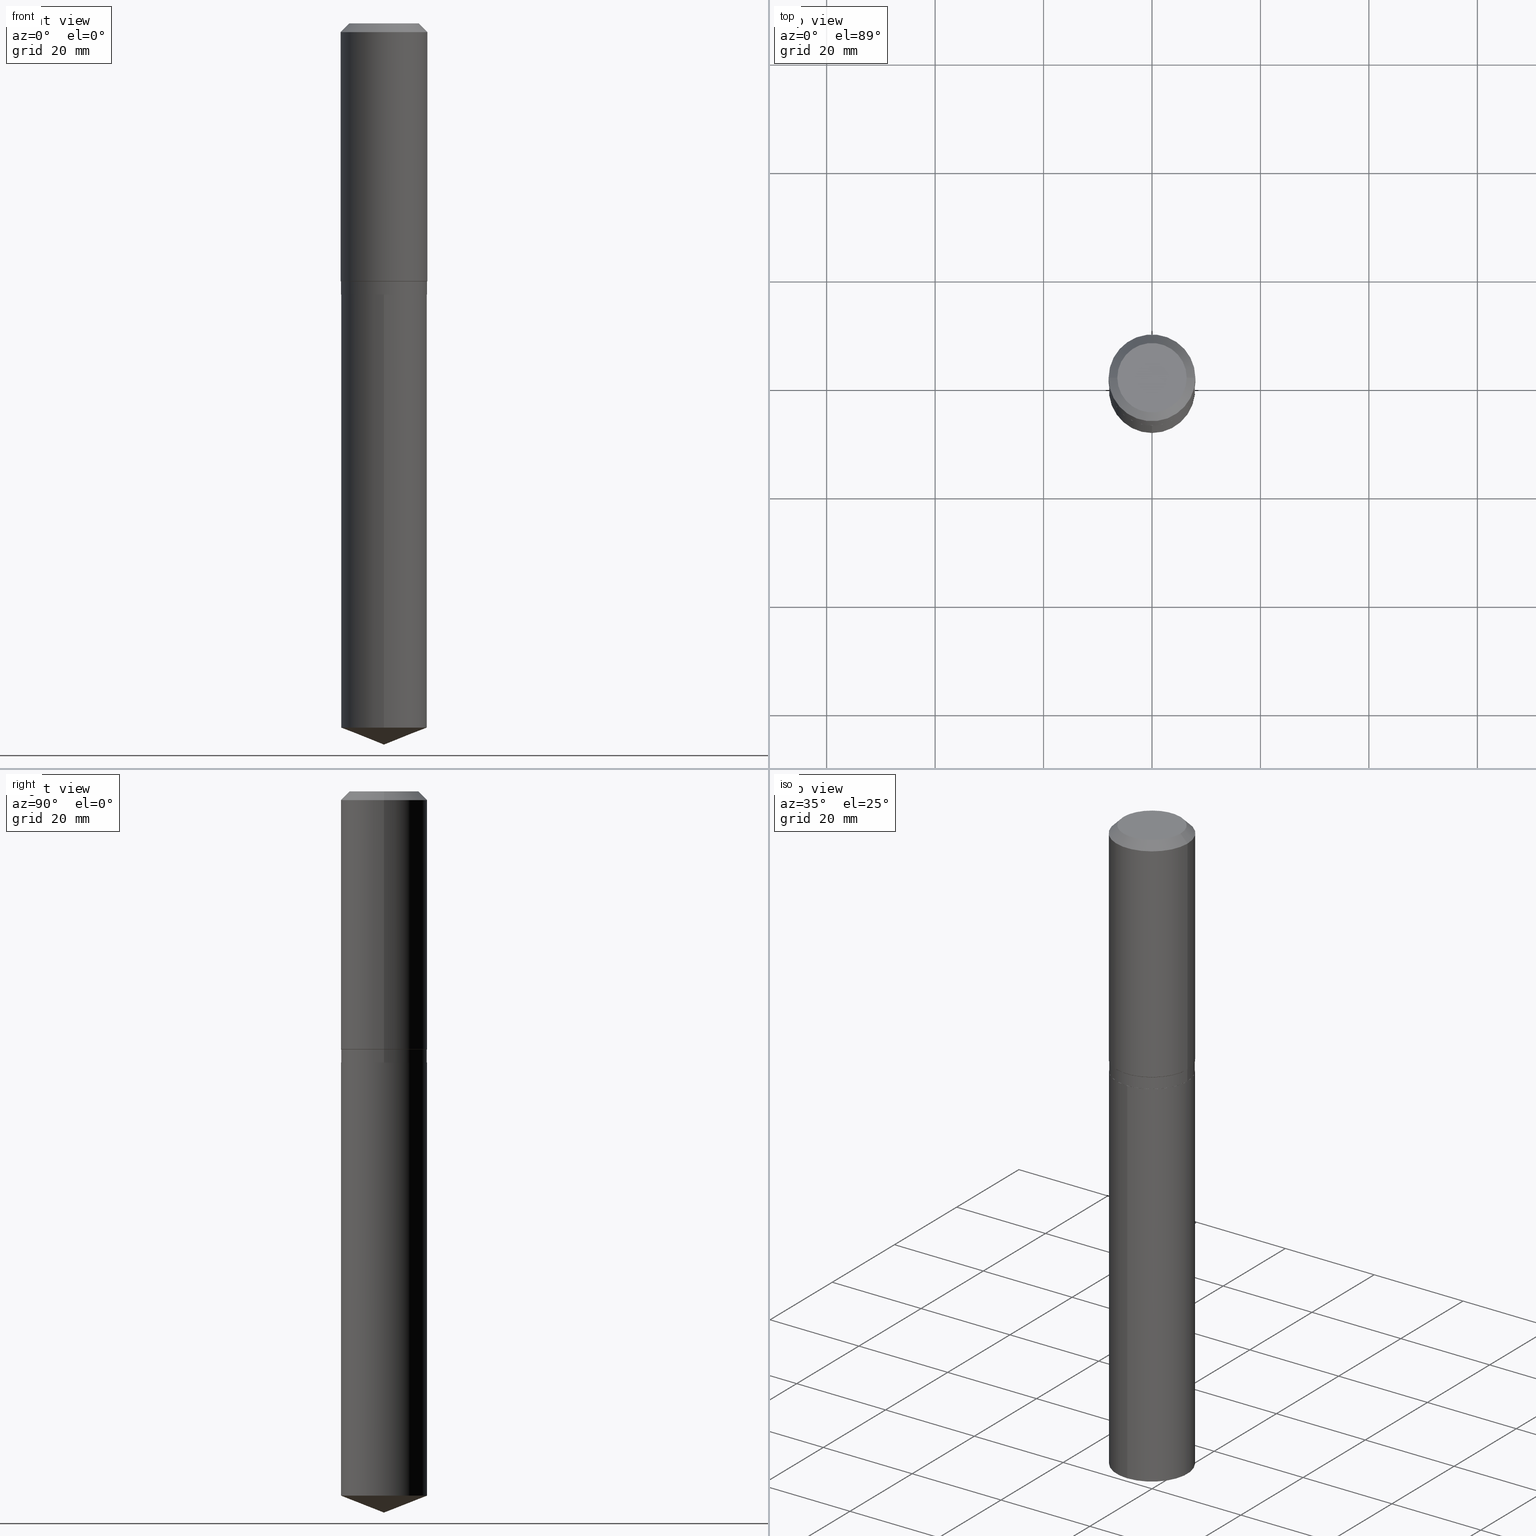
[diagram: canonical four-view strip — front | top / right | iso, engineering-drawing reading convention]
A machine part, canonical four-view strip (front | top / right | iso — engineering-drawing reading convention). The complete STEP part file that produces these views, byte-faithful:
ISO-10303-21;
HEADER;
FILE_DESCRIPTION (( 'STEP AP203' ),
    '1' );
FILE_NAME ('56468.STEP',
    '2024-04-24T18:11:30',
    ( '' ),
    ( '' ),
    'SwSTEP 2.0',
    'SolidWorks 2023',
    '' );
FILE_SCHEMA (( 'CONFIG_CONTROL_DESIGN' ));
ENDSEC;

DATA;
#1 = DIRECTION ( 'NONE',  ( 0.7071067811865573427, -2.468850131082359612E-15, 0.7071067811865376918 ) ) ;
#2 = CIRCLE ( 'NONE', #241, 0.3125000000000000000 ) ;
#3 = DIRECTION ( 'NONE',  ( -2.445468806185136597E-29, 3.491481338843145583E-15, 1.000000000000000000 ) ) ;
#4 = CARTESIAN_POINT ( 'NONE',  ( -0.3125000000000000000, 2.220446049250313081E-15, -1.537167215704658232E-29 ) ) ;
#5 = EDGE_CURVE ( 'NONE', #364, #442, #224, .T. ) ;
#6 = PERSON_AND_ORGANIZATION ( #473, #471 ) ;
#7 = DIRECTION ( 'NONE',  ( 1.000000000000000000, -6.982962677686264344E-15, 0.000000000000000000 ) ) ;
#8 = DATE_AND_TIME ( #430, #333 ) ;
#9 = CARTESIAN_POINT ( 'NONE',  ( 1.280454804874972997E-28, -1.828129120647004454E-14, -5.235999999999999766 ) ) ;
#10 = CONICAL_SURFACE ( 'NONE', #260, 99.94676754583900902, 1.195550537616116182 ) ;
#11 = APPROVAL_ROLE ( '' ) ;
#12 = ORIENTED_EDGE ( 'NONE', *, *, #374, .F. ) ;
#13 = PERSON_AND_ORGANIZATION_ROLE ( 'classification_officer' ) ;
#14 = VERTEX_POINT ( 'NONE', #248 ) ;
#15 = CALENDAR_DATE ( 2024, 24, 4 ) ;
#16 = ORIENTED_EDGE ( 'NONE', *, *, #187, .T. ) ;
#17 = CARTESIAN_POINT ( 'NONE',  ( 4.583297636552181403E-29, -6.543734325259821146E-15, -1.874199999999999422 ) ) ;
#18 = EDGE_LOOP ( 'NONE', ( #486, #170 ) ) ;
#19 = EDGE_CURVE ( 'NONE', #251, #90, #202, .T. ) ;
#20 = CYLINDRICAL_SURFACE ( 'NONE', #101, 0.3125000000000000000 ) ;
#21 = ADVANCED_FACE ( 'NONE', ( #28 ), #20, .T. ) ;
#22 = DIRECTION ( 'NONE',  ( 1.000000000000000000, -6.982962677686265133E-15, 0.000000000000000000 ) ) ;
#23 = VERTEX_POINT ( 'NONE', #405 ) ;
#24 = VERTEX_POINT ( 'NONE', #331 ) ;
#25 = DIRECTION ( 'NONE',  ( -6.982962677686265133E-15, -1.000000000000000000, 3.496765431890256920E-15 ) ) ;
#26 = EDGE_LOOP ( 'NONE', ( #480, #94, #172, #476 ) ) ;
#27 = APPLICATION_CONTEXT ( 'configuration controlled 3d designs of mechanical parts and assemblies' ) ;
#28 = FACE_OUTER_BOUND ( 'NONE', #134, .T. ) ;
#29 = DIRECTION ( 'NONE',  ( 6.982962677686265922E-15, 1.000000000000000000, -3.491461269379306004E-15 ) ) ;
#30 = CIRCLE ( 'NONE', #221, 0.3149500000000000077 ) ;
#31 = DIRECTION ( 'NONE',  ( -6.982962677686265133E-15, -1.000000000000000000, 3.496765431890256920E-15 ) ) ;
#32 = VECTOR ( 'NONE', #389, 39.37007874015748854 ) ;
#33 = CIRCLE ( 'NONE', #164, 0.2519600000000000173 ) ;
#34 = ADVANCED_FACE ( 'NONE', ( #219 ), #10, .T. ) ;
#35 = CIRCLE ( 'NONE', #417, 0.2519600000000000173 ) ;
#36 = CARTESIAN_POINT ( 'NONE',  ( 4.583297636552181403E-29, -6.543734325259821146E-15, -1.874199999999999422 ) ) ;
#37 = DIRECTION ( 'NONE',  ( -6.982962677686265133E-15, -1.000000000000000000, 3.496765431890256920E-15 ) ) ;
#38 = DIRECTION ( 'NONE',  ( -2.445468806185136877E-29, 3.491481338843145188E-15, 1.000000000000000000 ) ) ;
#39 = PRODUCT_RELATED_PRODUCT_CATEGORY ( 'detail', '', ( #279 ) ) ;
#40 = CLOSED_SHELL ( 'NONE', ( #459, #309, #95, #195, #422, #388, #223, #324, #270, #231, #441, #124 ) ) ;
#41 = EDGE_CURVE ( 'NONE', #14, #23, #110, .T. ) ;
#42 = CARTESIAN_POINT ( 'NONE',  ( 4.813416251214202584E-29, -6.872282719244960739E-15, -1.968299999999999272 ) ) ;
#43 = AXIS2_PLACEMENT_3D ( 'NONE', #346, #3, #126 ) ;
#44 = DIRECTION ( 'NONE',  ( 1.000000000000000000, -6.982962677686265133E-15, 0.000000000000000000 ) ) ;
#45 = APPLICATION_PROTOCOL_DEFINITION ( 'international standard', 'config_control_design', 1994, #64 ) ;
#46 = DIRECTION ( 'NONE',  ( -2.445468806185136597E-29, 3.491481338843145583E-15, 1.000000000000000000 ) ) ;
#47 = ORIENTED_EDGE ( 'NONE', *, *, #367, .F. ) ;
#48 = LOCAL_TIME ( 14, 11, 30.00000000000000000, #421 ) ;
#49 =( LENGTH_UNIT ( ) NAMED_UNIT ( * ) SI_UNIT ( $, .METRE. ) );
#50 = CIRCLE ( 'NONE', #391, 0.3125000000000000000 ) ;
#51 = PERSON_AND_ORGANIZATION ( #473, #471 ) ;
#52 = ORIENTED_EDGE ( 'NONE', *, *, #284, .F. ) ;
#53 = DIRECTION ( 'NONE',  ( 1.000000000000000000, -6.982962677686264344E-15, 0.000000000000000000 ) ) ;
#54 = VECTOR ( 'NONE', #289, 39.37007874015748143 ) ;
#55 = VERTEX_POINT ( 'NONE', #323 ) ;
#56 = DIRECTION ( 'NONE',  ( -2.445468806185136597E-29, 3.491481338843145583E-15, 1.000000000000000000 ) ) ;
#57 = CARTESIAN_POINT ( 'NONE',  ( 0.3149500000000000077, -2.380642253931875190E-15, -0.06299000000000036514 ) ) ;
#58 = CARTESIAN_POINT ( 'NONE',  ( -8.347433074124325002E-28, 1.191777743844777416E-13, 34.13407874015748433 ) ) ;
#59 = EDGE_LOOP ( 'NONE', ( #328, #246, #288, #63 ) ) ;
#60 = EDGE_CURVE ( 'NONE', #403, #73, #292, .T. ) ;
#61 = PRODUCT_DEFINITION_FORMATION_WITH_SPECIFIED_SOURCE ( 'ANY', '', #279, .NOT_KNOWN. ) ;
#62 = CARTESIAN_POINT ( 'NONE',  ( -0.2519600000000000173, 1.869391481036695286E-15, 3.855188123703174230E-18 ) ) ;
#63 = ORIENTED_EDGE ( 'NONE', *, *, #41, .F. ) ;
#64 = APPLICATION_CONTEXT ( 'configuration controlled 3d designs of mechanical parts and assemblies' ) ;
#65 = AXIS2_PLACEMENT_3D ( 'NONE', #440, #325, #447 ) ;
#66 = DIRECTION ( 'NONE',  ( 1.000000000000000000, -6.982962677686266711E-15, 4.876115136096691995E-29 ) ) ;
#67 = CC_DESIGN_PERSON_AND_ORGANIZATION_ASSIGNMENT ( #276, #399, ( #269 ) ) ;
#68 = CARTESIAN_POINT ( 'NONE',  ( 1.540400801016026329E-30, -2.199284095337310135E-16, -0.06299000000000036514 ) ) ;
#69 = CARTESIAN_POINT ( 'NONE',  ( 4.813416251214202584E-29, -6.872282719244960739E-15, -1.968299999999999272 ) ) ;
#70 = LOCAL_TIME ( 14, 11, 30.00000000000000000, #127 ) ;
#71 = DIRECTION ( 'NONE',  ( -2.445468806185136597E-29, 3.491481338843145583E-15, 1.000000000000000000 ) ) ;
#72 = VECTOR ( 'NONE', #185, 39.37007874015748854 ) ;
#73 = VERTEX_POINT ( 'NONE', #106 ) ;
#74 = EDGE_CURVE ( 'NONE', #24, #251, #148, .T. ) ;
#75 = DIRECTION ( 'NONE',  ( -2.445468806185136877E-29, 3.491481338843145188E-15, 1.000000000000000000 ) ) ;
#76 = VECTOR ( 'NONE', #38, 39.37007874015748143 ) ;
#77 = CARTESIAN_POINT ( 'NONE',  ( -0.3120000000000001106, -4.652740156499336567E-15, -1.968299999999999272 ) ) ;
#78 = EDGE_CURVE ( 'NONE', #23, #14, #305, .T. ) ;
#79 = CARTESIAN_POINT ( 'NONE',  ( -0.3149500000000000077, -1.139699956480256043E-15, -0.06299000000000036514 ) ) ;
#80 = LINE ( 'NONE', #455, #76 ) ;
#81 = CARTESIAN_POINT ( 'NONE',  ( 0.000000000000000000, 0.000000000000000000, 0.000000000000000000 ) ) ;
#82 = APPROVAL_STATUS ( 'not_yet_approved' ) ;
#83 = LINE ( 'NONE', #418, #92 ) ;
#84 = VERTEX_POINT ( 'NONE', #115 ) ;
#85 = ADVANCED_FACE ( 'NONE', ( #381 ), #227, .T. ) ;
#86 = APPROVAL_ROLE ( '' ) ;
#87 = EDGE_LOOP ( 'NONE', ( #237, #215, #100, #362 ) ) ;
#88 = CARTESIAN_POINT ( 'NONE',  ( 4.813416251214202584E-29, -6.872282719244960739E-15, -1.968299999999999272 ) ) ;
#89 = AXIS2_PLACEMENT_3D ( 'NONE', #69, #222, #29 ) ;
#90 = VERTEX_POINT ( 'NONE', #79 ) ;
#91 = CARTESIAN_POINT ( 'NONE',  ( 2.220446049250360807E-15, 0.3124999999999931166, -1.968300000000000383 ) ) ;
#92 = VECTOR ( 'NONE', #193, 39.37007874015748143 ) ;
#93 = COORDINATED_UNIVERSAL_TIME_OFFSET ( 5, 0, .BEHIND. ) ;
#94 = ORIENTED_EDGE ( 'NONE', *, *, #287, .T. ) ;
#95 = ADVANCED_FACE ( 'NONE', ( #377 ), #150, .T. ) ;
#96 = EDGE_LOOP ( 'NONE', ( #178, #437, #212, #12 ) ) ;
#97 = DIRECTION ( 'NONE',  ( 0.7071067811865453523, -7.319954787623248157E-15, -0.7071067811865496822 ) ) ;
#98 = DIRECTION ( 'NONE',  ( 1.000000000000000000, -6.982962677686266711E-15, 4.876115136096691995E-29 ) ) ;
#99 = VERTEX_POINT ( 'NONE', #336 ) ;
#100 = ORIENTED_EDGE ( 'NONE', *, *, #161, .F. ) ;
#101 = AXIS2_PLACEMENT_3D ( 'NONE', #253, #173, #182 ) ;
#102 = CARTESIAN_POINT ( 'NONE',  ( 4.583297636552181403E-29, -6.543734325259821146E-15, -1.874199999999999422 ) ) ;
#103 = DIRECTION ( 'NONE',  ( -2.445468806185136597E-29, 3.491481338843145583E-15, 1.000000000000000000 ) ) ;
#104 = ORIENTED_EDGE ( 'NONE', *, *, #262, .T. ) ;
#105 = AXIS2_PLACEMENT_3D ( 'NONE', #36, #123, #44 ) ;
#106 = CARTESIAN_POINT ( 'NONE',  ( 2.220446049250438510E-15, 0.3124999999999822364, -5.112902976370331309 ) ) ;
#107 = DIRECTION ( 'NONE',  ( -1.000000000000000000, 6.982962677686266711E-15, 0.000000000000000000 ) ) ;
#108 = ORIENTED_EDGE ( 'NONE', *, *, #133, .T. ) ;
#109 = CARTESIAN_POINT ( 'NONE',  ( 0.3120000000000001106, -9.050967074683076868E-15, -1.968299999999999272 ) ) ;
#110 = CIRCLE ( 'NONE', #122, 0.3125000000000000000 ) ;
#111 = CONICAL_SURFACE ( 'NONE', #267, 0.3120000000000001106, 0.7853981633974482790 ) ;
#112 = EDGE_CURVE ( 'NONE', #442, #364, #2, .T. ) ;
#113 = ADVANCED_FACE ( 'NONE', ( #329 ), #485, .T. ) ;
#114 = DIRECTION ( 'NONE',  ( -2.445468806185136597E-29, 3.491481338843145583E-15, 1.000000000000000000 ) ) ;
#115 = CARTESIAN_POINT ( 'NONE',  ( -0.3149500000000002298, -4.297325849703217821E-15, -1.871749999999999137 ) ) ;
#116 = APPROVAL ( #82, 'UNSPECIFIED' ) ;
#117 = PLANE ( 'NONE',  #168 ) ;
#118 = VECTOR ( 'NONE', #416, 39.37007874015748143 ) ;
#119 = DIRECTION ( 'NONE',  ( 1.000000000000000000, -6.982962677686265922E-15, 4.876176775795935793E-29 ) ) ;
#120 = ADVANCED_FACE ( 'NONE', ( #180 ), #370, .F. ) ;
#121 = DIRECTION ( 'NONE',  ( -6.497071151882111159E-15, -0.9304175679820234635, 0.3665012267243001332 ) ) ;
#122 = AXIS2_PLACEMENT_3D ( 'NONE', #144, #245, #293 ) ;
#123 = DIRECTION ( 'NONE',  ( -2.445468806185136597E-29, 3.491481338843145583E-15, 1.000000000000000000 ) ) ;
#124 = ADVANCED_FACE ( 'NONE', ( #174 ), #402, .T. ) ;
#125 = CIRCLE ( 'NONE', #65, 0.3149500000000002298 ) ;
#126 = DIRECTION ( 'NONE',  ( 1.000000000000000000, -6.982962677686266711E-15, 4.876176775795936353E-29 ) ) ;
#127 = COORDINATED_UNIVERSAL_TIME_OFFSET ( 5, 0, .BEHIND. ) ;
#128 = CARTESIAN_POINT ( 'NONE',  ( 0.000000000000000000, 0.000000000000000000, 0.000000000000000000 ) ) ;
#129 = APPROVAL_DATE_TIME ( #466, #468 ) ;
#130 = EDGE_LOOP ( 'NONE', ( #286, #208, #283, #438 ) ) ;
#131 = FACE_OUTER_BOUND ( 'NONE', #404, .T. ) ;
#132 = APPROVAL ( #432, 'UNSPECIFIED' ) ;
#133 = EDGE_CURVE ( 'NONE', #181, #24, #33, .T. ) ;
#134 = EDGE_LOOP ( 'NONE', ( #470, #104, #167, #205 ) ) ;
#135 = EDGE_LOOP ( 'NONE', ( #366, #146, #247, #16 ) ) ;
#136 = ORIENTED_EDGE ( 'NONE', *, *, #450, .F. ) ;
#137 = CARTESIAN_POINT ( 'NONE',  ( 0.3125000000000000000, -8.725910162036779493E-15, -1.874199999999999422 ) ) ;
#138 = DIRECTION ( 'NONE',  ( -2.445482820616831825E-29, 3.491461269379306004E-15, 1.000000000000000000 ) ) ;
#139 = DIRECTION ( 'NONE',  ( 1.000000000000000000, -6.982962677686268288E-15, 0.000000000000000000 ) ) ;
#140 = ORIENTED_EDGE ( 'NONE', *, *, #341, .F. ) ;
#141 = ORIENTED_EDGE ( 'NONE', *, *, #60, .F. ) ;
#142 = CC_DESIGN_APPROVAL ( #468, ( #269 ) ) ;
#143 = AXIS2_PLACEMENT_3D ( 'NONE', #68, #439, #474 ) ;
#144 = CARTESIAN_POINT ( 'NONE',  ( 4.812193516811110904E-29, -6.870536978575539236E-15, -1.967799999999999327 ) ) ;
#145 = CARTESIAN_POINT ( 'NONE',  ( 1.250348880758840458E-28, -1.785154221881686105E-14, -5.112902976370330421 ) ) ;
#146 = ORIENTED_EDGE ( 'NONE', *, *, #133, .F. ) ;
#147 = AXIS2_PLACEMENT_3D ( 'NONE', #344, #46, #7 ) ;
#148 = LINE ( 'NONE', #57, #372 ) ;
#149 = PLANE ( 'NONE',  #297 ) ;
#150 = CYLINDRICAL_SURFACE ( 'NONE', #376, 0.3149500000000001743 ) ;
#151 = ORIENTED_EDGE ( 'NONE', *, *, #187, .F. ) ;
#152 = FACE_OUTER_BOUND ( 'NONE', #408, .T. ) ;
#153 = EDGE_CURVE ( 'NONE', #84, #99, #265, .T. ) ;
#154 = AXIS2_PLACEMENT_3D ( 'NONE', #220, #298, #107 ) ;
#155 = DIRECTION ( 'NONE',  ( 1.000000000000000000, -6.982962677686266711E-15, 4.876176775795936353E-29 ) ) ;
#156 = DIRECTION ( 'NONE',  ( -2.445468806185136597E-29, 3.491481338843145583E-15, 1.000000000000000000 ) ) ;
#157 = CYLINDRICAL_SURFACE ( 'NONE', #43, 0.3125000000000000000 ) ;
#158 = LINE ( 'NONE', #266, #352 ) ;
#159 = COORDINATED_UNIVERSAL_TIME_OFFSET ( 5, 0, .BEHIND. ) ;
#160 = LINE ( 'NONE', #235, #118 ) ;
#161 = EDGE_CURVE ( 'NONE', #177, #55, #50, .T. ) ;
#162 = SHAPE_DEFINITION_REPRESENTATION ( #383, #210 ) ;
#163 = DIMENSIONAL_EXPONENTS ( 1.000000000000000000, 0.000000000000000000, 0.000000000000000000, 0.000000000000000000, 0.000000000000000000, 0.000000000000000000, 0.000000000000000000 ) ;
#164 = AXIS2_PLACEMENT_3D ( 'NONE', #214, #71, #66 ) ;
#165 = FACE_OUTER_BOUND ( 'NONE', #390, .T. ) ;
#166 = DATE_TIME_ROLE ( 'creation_date' ) ;
#167 = ORIENTED_EDGE ( 'NONE', *, *, #197, .T. ) ;
#168 = AXIS2_PLACEMENT_3D ( 'NONE', #311, #457, #119 ) ;
#169 = DATE_TIME_ROLE ( 'classification_date' ) ;
#170 = ORIENTED_EDGE ( 'NONE', *, *, #112, .T. ) ;
#171 = APPLICATION_PROTOCOL_DEFINITION ( 'international standard', 'config_control_design', 1994, #27 ) ;
#172 = ORIENTED_EDGE ( 'NONE', *, *, #216, .F. ) ;
#173 = DIRECTION ( 'NONE',  ( -2.445482820616831825E-29, 3.491461269379306004E-15, 1.000000000000000000 ) ) ;
#174 = FACE_OUTER_BOUND ( 'NONE', #59, .T. ) ;
#175 = ORIENTED_EDGE ( 'NONE', *, *, #153, .T. ) ;
#176 = DIRECTION ( 'NONE',  ( -2.445482820616831825E-29, 3.491461269379306004E-15, 1.000000000000000000 ) ) ;
#177 = VERTEX_POINT ( 'NONE', #137 ) ;
#178 = ORIENTED_EDGE ( 'NONE', *, *, #216, .T. ) ;
#179 = EDGE_CURVE ( 'NONE', #358, #14, #373, .T. ) ;
#180 = FACE_OUTER_BOUND ( 'NONE', #18, .T. ) ;
#181 = VERTEX_POINT ( 'NONE', #62 ) ;
#182 = DIRECTION ( 'NONE',  ( -6.982962677686265133E-15, -1.000000000000000000, 3.496765431890256920E-15 ) ) ;
#183 = DIRECTION ( 'NONE',  ( -2.445468806185136597E-29, 3.491481338843145583E-15, 1.000000000000000000 ) ) ;
#184 = ORIENTED_EDGE ( 'NONE', *, *, #478, .T. ) ;
#185 = DIRECTION ( 'NONE',  ( -0.7071067811865474617, 7.493145998870352582E-15, 0.7071067811865474617 ) ) ;
#186 = CC_DESIGN_PERSON_AND_ORGANIZATION_ASSIGNMENT ( #51, #387, ( #279 ) ) ;
#187 = EDGE_CURVE ( 'NONE', #90, #251, #30, .T. ) ;
#188 = CONICAL_SURFACE ( 'NONE', #154, 0.3149500000000000077, 0.7853981633974452814 ) ;
#189 = DIRECTION ( 'NONE',  ( -2.445468806185136877E-29, 3.491481338843145188E-15, 1.000000000000000000 ) ) ;
#190 = CARTESIAN_POINT ( 'NONE',  ( 4.813416251214202584E-29, -6.872282719244960739E-15, -1.968299999999999272 ) ) ;
#191 = LINE ( 'NONE', #4, #456 ) ;
#192 = CLOSED_SHELL ( 'NONE', ( #85, #113, #34, #21, #120 ) ) ;
#193 = DIRECTION ( 'NONE',  ( -0.7071067811865453523, 2.468850131082234184E-15, -0.7071067811865496822 ) ) ;
#194 = APPROVAL_DATE_TIME ( #392, #132 ) ;
#195 = ADVANCED_FACE ( 'NONE', ( #406 ), #342, .T. ) ;
#196 = CYLINDRICAL_SURFACE ( 'NONE', #425, 0.3149500000000001743 ) ;
#197 = EDGE_CURVE ( 'NONE', #403, #364, #254, .T. ) ;
#198 = APPROVAL_STATUS ( 'not_yet_approved' ) ;
#199 = CARTESIAN_POINT ( 'NONE',  ( 0.3120000000000001106, -9.050967074683076868E-15, -1.968299999999999272 ) ) ;
#200 = PERSON_AND_ORGANIZATION_ROLE ( 'design_supplier' ) ;
#201 = EDGE_LOOP ( 'NONE', ( #217, #184, #354, #330 ) ) ;
#202 = CIRCLE ( 'NONE', #143, 0.3149500000000000077 ) ;
#203 = CC_DESIGN_DATE_AND_TIME_ASSIGNMENT ( #353, #169, ( #230 ) ) ;
#204 = PERSON_AND_ORGANIZATION ( #473, #471 ) ;
#205 = ORIENTED_EDGE ( 'NONE', *, *, #112, .F. ) ;
#206 = VECTOR ( 'NONE', #75, 39.37007874015748143 ) ;
#207 = COORDINATED_UNIVERSAL_TIME_OFFSET ( 5, 0, .BEHIND. ) ;
#208 = ORIENTED_EDGE ( 'NONE', *, *, #367, .T. ) ;
#209 = DIRECTION ( 'NONE',  ( -2.445482820616831825E-29, 3.491461269379306004E-15, 1.000000000000000000 ) ) ;
#210 = ADVANCED_BREP_SHAPE_REPRESENTATION ( '56468', ( #303, #477, #240 ), #365 ) ;
#211 = DIRECTION ( 'NONE',  ( 1.000000000000000000, -6.982962677686265133E-15, 0.000000000000000000 ) ) ;
#212 = ORIENTED_EDGE ( 'NONE', *, *, #19, .F. ) ;
#213 = CARTESIAN_POINT ( 'NONE',  ( 4.812193516811110904E-29, -6.870536978575539236E-15, -1.967799999999999327 ) ) ;
#214 = CARTESIAN_POINT ( 'NONE',  ( -9.427742298522548188E-47, 1.346031739168365618E-32, 3.855188123715863027E-18 ) ) ;
#215 = ORIENTED_EDGE ( 'NONE', *, *, #341, .T. ) ;
#216 = EDGE_CURVE ( 'NONE', #99, #84, #125, .T. ) ;
#217 = ORIENTED_EDGE ( 'NONE', *, *, #60, .T. ) ;
#218 = CARTESIAN_POINT ( 'NONE',  ( 1.540400801016026329E-30, -2.199284095337310135E-16, -0.06299000000000036514 ) ) ;
#219 = FACE_OUTER_BOUND ( 'NONE', #316, .T. ) ;
#220 = CARTESIAN_POINT ( 'NONE',  ( 1.540400801016026329E-30, -2.199284095337310135E-16, -0.06299000000000036514 ) ) ;
#221 = AXIS2_PLACEMENT_3D ( 'NONE', #218, #361, #285 ) ;
#222 = DIRECTION ( 'NONE',  ( 2.445482820616831545E-29, -3.491461269379306004E-15, -1.000000000000000000 ) ) ;
#223 = ADVANCED_FACE ( 'NONE', ( #475 ), #339, .T. ) ;
#224 = CIRCLE ( 'NONE', #345, 0.3125000000000000000 ) ;
#225 = CYLINDRICAL_SURFACE ( 'NONE', #275, 0.3125000000000000000 ) ;
#226 = VECTOR ( 'NONE', #238, 39.37007874015748143 ) ;
#227 = CYLINDRICAL_SURFACE ( 'NONE', #335, 0.3125000000000000000 ) ;
#228 = CARTESIAN_POINT ( 'NONE',  ( 0.000000000000000000, 0.000000000000000000, 0.000000000000000000 ) ) ;
#229 = LINE ( 'NONE', #199, #32 ) ;
#230 = SECURITY_CLASSIFICATION ( '', '', #357 ) ;
#231 = ADVANCED_FACE ( 'NONE', ( #152 ), #149, .F. ) ;
#232 = CARTESIAN_POINT ( 'NONE',  ( -2.182175836776833707E-15, -0.3125000000000178191, -5.112902976370329533 ) ) ;
#233 = CIRCLE ( 'NONE', #105, 0.3125000000000000000 ) ;
#234 = DIRECTION ( 'NONE',  ( 1.000000000000000000, 0.000000000000000000, 0.000000000000000000 ) ) ;
#235 = CARTESIAN_POINT ( 'NONE',  ( 0.3149500000000001743, -2.199284095337290660E-15, 1.535751875536930690E-29 ) ) ;
#236 = CALENDAR_DATE ( 2024, 24, 4 ) ;
#237 = ORIENTED_EDGE ( 'NONE', *, *, #78, .T. ) ;
#238 = DIRECTION ( 'NONE',  ( 6.611014441532059489E-15, 0.9304175679820259059, 0.3665012267242935828 ) ) ;
#239 = CALENDAR_DATE ( 2024, 24, 4 ) ;
#240 = AXIS2_PLACEMENT_3D ( 'NONE', #128, #244, #234 ) ;
#241 = AXIS2_PLACEMENT_3D ( 'NONE', #410, #263, #31 ) ;
#242 = MECHANICAL_CONTEXT ( 'NONE', #27, 'mechanical' ) ;
#243 = ORIENTED_EDGE ( 'NONE', *, *, #179, .T. ) ;
#244 = DIRECTION ( 'NONE',  ( 0.000000000000000000, 0.000000000000000000, 1.000000000000000000 ) ) ;
#245 = DIRECTION ( 'NONE',  ( -2.445468806185136597E-29, 3.491481338843145583E-15, 1.000000000000000000 ) ) ;
#246 = ORIENTED_EDGE ( 'NONE', *, *, #450, .T. ) ;
#247 = ORIENTED_EDGE ( 'NONE', *, *, #302, .T. ) ;
#248 = CARTESIAN_POINT ( 'NONE',  ( -0.3125000000000000000, -4.486689602667367110E-15, -1.967799999999999327 ) ) ;
#249 = CARTESIAN_POINT ( 'NONE',  ( -0.3120000000000001106, -4.655389383673447768E-15, -1.968299999999999272 ) ) ;
#250 = EDGE_CURVE ( 'NONE', #24, #181, #35, .T. ) ;
#251 = VERTEX_POINT ( 'NONE', #444 ) ;
#252 = AXIS2_PLACEMENT_3D ( 'NONE', #412, #114, #368 ) ;
#253 = CARTESIAN_POINT ( 'NONE',  ( 4.813416251214202584E-29, -6.872282719244960739E-15, -1.968299999999999272 ) ) ;
#254 = LINE ( 'NONE', #489, #54 ) ;
#255 = CARTESIAN_POINT ( 'NONE',  ( 4.813416251214202584E-29, -6.872282719244960739E-15, -1.968299999999999272 ) ) ;
#256 = DIRECTION ( 'NONE',  ( -2.445468806185136597E-29, 3.491481338843145583E-15, 1.000000000000000000 ) ) ;
#257 = ORIENTED_EDGE ( 'NONE', *, *, #375, .F. ) ;
#258 = DIRECTION ( 'NONE',  ( -2.445468806185136597E-29, 3.491481338843145583E-15, 1.000000000000000000 ) ) ;
#259 = APPROVAL_PERSON_ORGANIZATION ( #320, #468, #273 ) ;
#260 = AXIS2_PLACEMENT_3D ( 'NONE', #369, #482, #337 ) ;
#261 = CIRCLE ( 'NONE', #490, 0.3125000000000000000 ) ;
#262 = EDGE_CURVE ( 'NONE', #73, #403, #261, .T. ) ;
#263 = DIRECTION ( 'NONE',  ( -2.445482820616831825E-29, 3.491461269379306004E-15, 1.000000000000000000 ) ) ;
#264 = APPROVAL_PERSON_ORGANIZATION ( #317, #116, #11 ) ;
#265 = CIRCLE ( 'NONE', #351, 0.3149500000000002298 ) ;
#266 = CARTESIAN_POINT ( 'NONE',  ( -0.3125000000000000000, -4.323288276009508065E-15, -1.874199999999999422 ) ) ;
#267 = AXIS2_PLACEMENT_3D ( 'NONE', #88, #56, #53 ) ;
#268 = CARTESIAN_POINT ( 'NONE',  ( 2.220446049250438510E-15, 0.3124999999999931166, -1.968300000000000383 ) ) ;
#269 = PRODUCT_DEFINITION ( 'UNKNOWN', '', #61, #434 ) ;
#270 = ADVANCED_FACE ( 'NONE', ( #484 ), #188, .T. ) ;
#271 = CARTESIAN_POINT ( 'NONE',  ( -2.182175836776910227E-15, -0.3125000000000069389, -1.968299999999998162 ) ) ;
#272 = LOCAL_TIME ( 14, 11, 30.00000000000000000, #207 ) ;
#273 = APPROVAL_ROLE ( '' ) ;
#274 = LINE ( 'NONE', #464, #206 ) ;
#275 = AXIS2_PLACEMENT_3D ( 'NONE', #228, #385, #155 ) ;
#276 = PERSON_AND_ORGANIZATION ( #473, #471 ) ;
#277 =( NAMED_UNIT ( * ) PLANE_ANGLE_UNIT ( ) SI_UNIT ( $, .RADIAN. ) );
#278 = CALENDAR_DATE ( 2024, 24, 4 ) ;
#279 = PRODUCT ( '56468', '56468', '', ( #242 ) ) ;
#280 = CC_DESIGN_SECURITY_CLASSIFICATION ( #230, ( #61 ) ) ;
#281 = VERTEX_POINT ( 'NONE', #109 ) ;
#282 = LINE ( 'NONE', #91, #386 ) ;
#283 = ORIENTED_EDGE ( 'NONE', *, *, #423, .T. ) ;
#284 = EDGE_CURVE ( 'NONE', #281, #23, #229, .T. ) ;
#285 = DIRECTION ( 'NONE',  ( 1.000000000000000000, -6.982962677686266711E-15, 0.000000000000000000 ) ) ;
#286 = ORIENTED_EDGE ( 'NONE', *, *, #287, .F. ) ;
#287 = EDGE_CURVE ( 'NONE', #55, #84, #158, .T. ) ;
#288 = ORIENTED_EDGE ( 'NONE', *, *, #284, .T. ) ;
#289 = DIRECTION ( 'NONE',  ( -2.445482820616831825E-29, 3.491461269379306004E-15, 1.000000000000000000 ) ) ;
#290 = EDGE_LOOP ( 'NONE', ( #299, #411, #141 ) ) ;
#291 = EDGE_LOOP ( 'NONE', ( #400, #312, #431, #295 ) ) ;
#292 = CIRCLE ( 'NONE', #429, 0.3125000000000000000 ) ;
#293 = DIRECTION ( 'NONE',  ( 1.000000000000000000, -6.982962677686269077E-15, 0.000000000000000000 ) ) ;
#294 = DIRECTION ( 'NONE',  ( 2.438088387897960049E-29, -3.491481338843145188E-15, -1.000000000000000000 ) ) ;
#295 = ORIENTED_EDGE ( 'NONE', *, *, #302, .F. ) ;
#296 = CC_DESIGN_PERSON_AND_ORGANIZATION_ASSIGNMENT ( #460, #200, ( #61 ) ) ;
#297 = AXIS2_PLACEMENT_3D ( 'NONE', #436, #294, #363 ) ;
#298 = DIRECTION ( 'NONE',  ( 2.445468806185136597E-29, -3.491481338843145583E-15, -1.000000000000000000 ) ) ;
#299 = ORIENTED_EDGE ( 'NONE', *, *, #360, .F. ) ;
#300 = CARTESIAN_POINT ( 'NONE',  ( -9.427742298522548188E-47, 1.346031739168365618E-32, 3.855188123715863027E-18 ) ) ;
#301 = AXIS2_PLACEMENT_3D ( 'NONE', #349, #462, #458 ) ;
#302 = EDGE_CURVE ( 'NONE', #181, #90, #83, .T. ) ;
#303 = MANIFOLD_SOLID_BREP ( 'Body-Move/Copy2[1]', #192 ) ;
#304 = FACE_OUTER_BOUND ( 'NONE', #414, .T. ) ;
#305 = CIRCLE ( 'NONE', #454, 0.3125000000000000000 ) ;
#306 = DIRECTION ( 'NONE',  ( -2.445482820616831825E-29, 3.491461269379306004E-15, 1.000000000000000000 ) ) ;
#307 = FACE_OUTER_BOUND ( 'NONE', #87, .T. ) ;
#308 = AXIS2_PLACEMENT_3D ( 'NONE', #488, #258, #22 ) ;
#309 = ADVANCED_FACE ( 'NONE', ( #382 ), #314, .T. ) ;
#310 = DIRECTION ( 'NONE',  ( -0.7071067811865573427, 7.493145998870388870E-15, 0.7071067811865376918 ) ) ;
#311 = CARTESIAN_POINT ( 'NONE',  ( 4.813416251214202584E-29, -6.872282719244960739E-15, -1.968299999999999272 ) ) ;
#312 = ORIENTED_EDGE ( 'NONE', *, *, #74, .T. ) ;
#313 = CARTESIAN_POINT ( 'NONE',  ( 1.280449287953791901E-28, -1.828137021192139365E-14, -5.235999999999999766 ) ) ;
#314 = CONICAL_SURFACE ( 'NONE', #301, 0.3149500000000000077, 0.7853981633974452814 ) ;
#315 = DATE_AND_TIME ( #278, #272 ) ;
#316 = EDGE_LOOP ( 'NONE', ( #321, #481, #448 ) ) ;
#317 = PERSON_AND_ORGANIZATION ( #473, #471 ) ;
#318 = ORIENTED_EDGE ( 'NONE', *, *, #78, .F. ) ;
#319 =( CONVERSION_BASED_UNIT ( 'INCH', #355 ) LENGTH_UNIT ( ) NAMED_UNIT ( #163 ) );
#320 = PERSON_AND_ORGANIZATION ( #473, #471 ) ;
#321 = ORIENTED_EDGE ( 'NONE', *, *, #461, .F. ) ;
#322 = ORIENTED_EDGE ( 'NONE', *, *, #41, .T. ) ;
#323 = CARTESIAN_POINT ( 'NONE',  ( -0.3125000000000000000, -4.486689602667367110E-15, -1.874199999999999422 ) ) ;
#324 = ADVANCED_FACE ( 'NONE', ( #165 ), #196, .T. ) ;
#325 = DIRECTION ( 'NONE',  ( -2.445468806185136597E-29, 3.491481338843145583E-15, 1.000000000000000000 ) ) ;
#326 = ORIENTED_EDGE ( 'NONE', *, *, #350, .F. ) ;
#327 = CARTESIAN_POINT ( 'NONE',  ( 0.000000000000000000, 0.000000000000000000, 0.000000000000000000 ) ) ;
#328 = ORIENTED_EDGE ( 'NONE', *, *, #179, .F. ) ;
#329 = FACE_OUTER_BOUND ( 'NONE', #290, .T. ) ;
#330 = ORIENTED_EDGE ( 'NONE', *, *, #197, .F. ) ;
#331 = CARTESIAN_POINT ( 'NONE',  ( 0.2519600000000000173, -2.054606664725195058E-15, 3.855188123729198166E-18 ) ) ;
#332 = CARTESIAN_POINT ( 'NONE',  ( 4.577306237977027909E-29, -6.535180195979654595E-15, -1.871749999999999137 ) ) ;
#333 = LOCAL_TIME ( 14, 11, 30.00000000000000000, #159 ) ;
#334 = VERTEX_POINT ( 'NONE', #9 ) ;
#335 = AXIS2_PLACEMENT_3D ( 'NONE', #190, #306, #37 ) ;
#336 = CARTESIAN_POINT ( 'NONE',  ( 0.3149500000000002298, -8.734464291316946833E-15, -1.871749999999999137 ) ) ;
#337 = DIRECTION ( 'NONE',  ( -6.982962677686265922E-15, -1.000000000000000000, 3.498627837350038143E-15 ) ) ;
#338 = DIRECTION ( 'NONE',  ( -2.445468806185136597E-29, 3.491481338843145583E-15, 1.000000000000000000 ) ) ;
#339 = CONICAL_SURFACE ( 'NONE', #308, 0.3125000000000000000, 0.7853981633974621568 ) ;
#340 = DIRECTION ( 'NONE',  ( 1.000000000000000000, -6.982962677686265133E-15, 0.000000000000000000 ) ) ;
#341 = EDGE_CURVE ( 'NONE', #14, #55, #191, .T. ) ;
#342 = CONICAL_SURFACE ( 'NONE', #465, 0.3125000000000000000, 0.7853981633974621568 ) ;
#343 = LINE ( 'NONE', #384, #378 ) ;
#344 = CARTESIAN_POINT ( 'NONE',  ( 4.813416251214202584E-29, -6.872282719244960739E-15, -1.968299999999999272 ) ) ;
#345 = AXIS2_PLACEMENT_3D ( 'NONE', #255, #138, #409 ) ;
#346 = CARTESIAN_POINT ( 'NONE',  ( 0.000000000000000000, 0.000000000000000000, 0.000000000000000000 ) ) ;
#347 = DIRECTION ( 'NONE',  ( 1.000000000000000000, -6.982962677686265922E-15, 4.876176775795935232E-29 ) ) ;
#348 = PERSON_AND_ORGANIZATION_ROLE ( 'creator' ) ;
#349 = CARTESIAN_POINT ( 'NONE',  ( 1.540400801016026329E-30, -2.199284095337310135E-16, -0.06299000000000036514 ) ) ;
#350 = EDGE_CURVE ( 'NONE', #84, #90, #80, .T. ) ;
#351 = AXIS2_PLACEMENT_3D ( 'NONE', #332, #256, #139 ) ;
#352 = VECTOR ( 'NONE', #310, 39.37007874015748143 ) ;
#353 = DATE_AND_TIME ( #15, #48 ) ;
#354 = ORIENTED_EDGE ( 'NONE', *, *, #5, .F. ) ;
#355 = LENGTH_MEASURE_WITH_UNIT ( LENGTH_MEASURE( 0.02539999999999999897 ), #49 );
#356 = UNCERTAINTY_MEASURE_WITH_UNIT (LENGTH_MEASURE( 1.000000000000000082E-05 ), #319, 'distance_accuracy_value', 'NONE');
#357 = SECURITY_CLASSIFICATION_LEVEL ( 'unclassified' ) ;
#358 = VERTEX_POINT ( 'NONE', #77 ) ;
#359 = CC_DESIGN_DATE_AND_TIME_ASSIGNMENT ( #315, #166, ( #269 ) ) ;
#360 = EDGE_CURVE ( 'NONE', #334, #403, #379, .T. ) ;
#361 = DIRECTION ( 'NONE',  ( -2.445468806185136597E-29, 3.491481338843145583E-15, 1.000000000000000000 ) ) ;
#362 = ORIENTED_EDGE ( 'NONE', *, *, #415, .F. ) ;
#363 = DIRECTION ( 'NONE',  ( -1.000000000000000000, 6.982962677686265922E-15, -4.876176775795935793E-29 ) ) ;
#364 = VERTEX_POINT ( 'NONE', #271 ) ;
#365 =( GEOMETRIC_REPRESENTATION_CONTEXT ( 3 ) GLOBAL_UNCERTAINTY_ASSIGNED_CONTEXT ( ( #356 ) ) GLOBAL_UNIT_ASSIGNED_CONTEXT ( ( #319, #277, #394 ) ) REPRESENTATION_CONTEXT ( 'NONE', 'WORKASPACE' ) );
#366 = ORIENTED_EDGE ( 'NONE', *, *, #74, .F. ) ;
#367 = EDGE_CURVE ( 'NONE', #55, #177, #233, .T. ) ;
#368 = DIRECTION ( 'NONE',  ( 1.000000000000000000, -6.982962677686264344E-15, 0.000000000000000000 ) ) ;
#369 = CARTESIAN_POINT ( 'NONE',  ( -8.347433074124325002E-28, 1.191777743844777416E-13, 34.13407874015748433 ) ) ;
#370 = PLANE ( 'NONE',  #89 ) ;
#371 = CC_DESIGN_APPROVAL ( #132, ( #61 ) ) ;
#372 = VECTOR ( 'NONE', #97, 39.37007874015748143 ) ;
#373 = LINE ( 'NONE', #249, #72 ) ;
#374 = EDGE_CURVE ( 'NONE', #99, #251, #160, .T. ) ;
#375 = EDGE_CURVE ( 'NONE', #281, #358, #396, .T. ) ;
#376 = AXIS2_PLACEMENT_3D ( 'NONE', #327, #103, #467 ) ;
#377 = FACE_OUTER_BOUND ( 'NONE', #96, .T. ) ;
#378 = VECTOR ( 'NONE', #1, 39.37007874015748143 ) ;
#379 = LINE ( 'NONE', #313, #407 ) ;
#380 = CC_DESIGN_PERSON_AND_ORGANIZATION_ASSIGNMENT ( #204, #348, ( #61 ) ) ;
#381 = FACE_OUTER_BOUND ( 'NONE', #201, .T. ) ;
#382 = FACE_OUTER_BOUND ( 'NONE', #291, .T. ) ;
#383 = PRODUCT_DEFINITION_SHAPE ( 'NONE', 'NONE',  #269 ) ;
#384 = CARTESIAN_POINT ( 'NONE',  ( 0.3125000000000000000, -8.725910162036779493E-15, -1.874199999999999422 ) ) ;
#385 = DIRECTION ( 'NONE',  ( -2.445468806185136597E-29, 3.491481338843145583E-15, 1.000000000000000000 ) ) ;
#386 = VECTOR ( 'NONE', #209, 39.37007874015748143 ) ;
#387 = PERSON_AND_ORGANIZATION_ROLE ( 'design_owner' ) ;
#388 = ADVANCED_FACE ( 'NONE', ( #420 ), #157, .T. ) ;
#389 = DIRECTION ( 'NONE',  ( 0.7071067811865474617, -2.468850131082256666E-15, 0.7071067811865474617 ) ) ;
#390 = EDGE_LOOP ( 'NONE', ( #326, #175, #433, #151 ) ) ;
#391 = AXIS2_PLACEMENT_3D ( 'NONE', #102, #183, #211 ) ;
#392 = DATE_AND_TIME ( #236, #413 ) ;
#393 = ORIENTED_EDGE ( 'NONE', *, *, #250, .T. ) ;
#394 =( NAMED_UNIT ( * ) SI_UNIT ( $, .STERADIAN. ) SOLID_ANGLE_UNIT ( ) );
#395 = CC_DESIGN_PERSON_AND_ORGANIZATION_ASSIGNMENT ( #397, #13, ( #230 ) ) ;
#396 = CIRCLE ( 'NONE', #147, 0.3120000000000001106 ) ;
#397 = PERSON_AND_ORGANIZATION ( #473, #471 ) ;
#398 = CARTESIAN_POINT ( 'NONE',  ( 1.280454853251859527E-28, -1.828129120647004454E-14, -5.235999999999999766 ) ) ;
#399 = PERSON_AND_ORGANIZATION_ROLE ( 'creator' ) ;
#400 = ORIENTED_EDGE ( 'NONE', *, *, #250, .F. ) ;
#401 = DIRECTION ( 'NONE',  ( -2.445482820616831825E-29, 3.491461269379306004E-15, 1.000000000000000000 ) ) ;
#402 = CONICAL_SURFACE ( 'NONE', #252, 0.3120000000000001106, 0.7853981633974482790 ) ;
#403 = VERTEX_POINT ( 'NONE', #232 ) ;
#404 = EDGE_LOOP ( 'NONE', ( #427, #243, #318, #52 ) ) ;
#405 = CARTESIAN_POINT ( 'NONE',  ( 0.3125000000000000000, -9.052712815352499160E-15, -1.967799999999999327 ) ) ;
#406 = FACE_OUTER_BOUND ( 'NONE', #26, .T. ) ;
#407 = VECTOR ( 'NONE', #121, 39.37007874015748854 ) ;
#408 = EDGE_LOOP ( 'NONE', ( #108, #393 ) ) ;
#409 = DIRECTION ( 'NONE',  ( -6.982962677686265133E-15, -1.000000000000000000, 3.496765431890256920E-15 ) ) ;
#410 = CARTESIAN_POINT ( 'NONE',  ( 4.813416251214202584E-29, -6.872282719244960739E-15, -1.968299999999999272 ) ) ;
#411 = ORIENTED_EDGE ( 'NONE', *, *, #461, .T. ) ;
#412 = CARTESIAN_POINT ( 'NONE',  ( 4.813416251214202584E-29, -6.872282719244960739E-15, -1.968299999999999272 ) ) ;
#413 = LOCAL_TIME ( 14, 11, 30.00000000000000000, #93 ) ;
#414 = EDGE_LOOP ( 'NONE', ( #257, #136 ) ) ;
#415 = EDGE_CURVE ( 'NONE', #23, #177, #274, .T. ) ;
#416 = DIRECTION ( 'NONE',  ( -2.445468806185136877E-29, 3.491481338843145188E-15, 1.000000000000000000 ) ) ;
#417 = AXIS2_PLACEMENT_3D ( 'NONE', #300, #449, #98 ) ;
#418 = CARTESIAN_POINT ( 'NONE',  ( -0.3149500000000000077, 1.979355685803558833E-15, -0.06299000000000036514 ) ) ;
#419 = DIRECTION ( 'NONE',  ( -2.445468806185136597E-29, 3.491481338843145583E-15, 1.000000000000000000 ) ) ;
#420 = FACE_OUTER_BOUND ( 'NONE', #472, .T. ) ;
#421 = COORDINATED_UNIVERSAL_TIME_OFFSET ( 5, 0, .BEHIND. ) ;
#422 = ADVANCED_FACE ( 'NONE', ( #307 ), #225, .T. ) ;
#423 = EDGE_CURVE ( 'NONE', #177, #99, #343, .T. ) ;
#424 = DIRECTION ( 'NONE',  ( -2.445468806185136597E-29, 3.491481338843145583E-15, 1.000000000000000000 ) ) ;
#425 = AXIS2_PLACEMENT_3D ( 'NONE', #81, #419, #347 ) ;
#426 = DIRECTION ( 'NONE',  ( 1.000000000000000000, -6.982962677686264344E-15, 0.000000000000000000 ) ) ;
#427 = ORIENTED_EDGE ( 'NONE', *, *, #375, .T. ) ;
#428 = LINE ( 'NONE', #398, #226 ) ;
#429 = AXIS2_PLACEMENT_3D ( 'NONE', #443, #435, #487 ) ;
#430 = CALENDAR_DATE ( 2024, 24, 4 ) ;
#431 = ORIENTED_EDGE ( 'NONE', *, *, #19, .T. ) ;
#432 = APPROVAL_STATUS ( 'not_yet_approved' ) ;
#433 = ORIENTED_EDGE ( 'NONE', *, *, #374, .T. ) ;
#434 = DESIGN_CONTEXT ( 'detailed design', #64, 'design' ) ;
#435 = DIRECTION ( 'NONE',  ( -2.445482820616831825E-29, 3.491461269379306004E-15, 1.000000000000000000 ) ) ;
#436 = CARTESIAN_POINT ( 'NONE',  ( -4.713871149261274094E-47, 6.730158695841828091E-33, 1.927594061857931513E-18 ) ) ;
#437 = ORIENTED_EDGE ( 'NONE', *, *, #350, .T. ) ;
#438 = ORIENTED_EDGE ( 'NONE', *, *, #153, .F. ) ;
#439 = DIRECTION ( 'NONE',  ( -2.445468806185136597E-29, 3.491481338843145583E-15, 1.000000000000000000 ) ) ;
#440 = CARTESIAN_POINT ( 'NONE',  ( 4.577306237977027909E-29, -6.535180195979654595E-15, -1.871749999999999137 ) ) ;
#441 = ADVANCED_FACE ( 'NONE', ( #304 ), #117, .F. ) ;
#442 = VERTEX_POINT ( 'NONE', #268 ) ;
#443 = CARTESIAN_POINT ( 'NONE',  ( 1.250348880758840458E-28, -1.785154221881686105E-14, -5.112902976370330421 ) ) ;
#444 = CARTESIAN_POINT ( 'NONE',  ( 0.3149500000000000077, -2.419212504871020909E-15, -0.06299000000000036514 ) ) ;
#445 = CIRCLE ( 'NONE', #452, 0.3120000000000001106 ) ;
#446 = ORIENTED_EDGE ( 'NONE', *, *, #415, .T. ) ;
#447 = DIRECTION ( 'NONE',  ( 1.000000000000000000, -6.982962677686268288E-15, 0.000000000000000000 ) ) ;
#448 = ORIENTED_EDGE ( 'NONE', *, *, #262, .F. ) ;
#449 = DIRECTION ( 'NONE',  ( -2.445468806185136597E-29, 3.491481338843145583E-15, 1.000000000000000000 ) ) ;
#450 = EDGE_CURVE ( 'NONE', #358, #281, #445, .T. ) ;
#451 = CC_DESIGN_APPROVAL ( #116, ( #230 ) ) ;
#452 = AXIS2_PLACEMENT_3D ( 'NONE', #42, #424, #426 ) ;
#453 = DIRECTION ( 'NONE',  ( 1.000000000000000000, -6.982962677686269077E-15, 0.000000000000000000 ) ) ;
#454 = AXIS2_PLACEMENT_3D ( 'NONE', #213, #156, #453 ) ;
#455 = CARTESIAN_POINT ( 'NONE',  ( -0.3149500000000001743, 2.237854346276436774E-15, -1.549218606675783237E-29 ) ) ;
#456 = VECTOR ( 'NONE', #189, 39.37007874015748143 ) ;
#457 = DIRECTION ( 'NONE',  ( -2.438088387897960049E-29, 3.491481338843145188E-15, 1.000000000000000000 ) ) ;
#458 = DIRECTION ( 'NONE',  ( -1.000000000000000000, 6.982962677686266711E-15, 0.000000000000000000 ) ) ;
#459 = ADVANCED_FACE ( 'NONE', ( #131 ), #111, .T. ) ;
#460 = PERSON_AND_ORGANIZATION ( #473, #471 ) ;
#461 = EDGE_CURVE ( 'NONE', #334, #73, #428, .T. ) ;
#462 = DIRECTION ( 'NONE',  ( 2.445468806185136597E-29, -3.491481338843145583E-15, -1.000000000000000000 ) ) ;
#463 = AXIS2_PLACEMENT_3D ( 'NONE', #58, #176, #479 ) ;
#464 = CARTESIAN_POINT ( 'NONE',  ( 0.3125000000000000000, -2.182175836776958347E-15, 1.523805242436230075E-29 ) ) ;
#465 = AXIS2_PLACEMENT_3D ( 'NONE', #17, #338, #340 ) ;
#466 = DATE_AND_TIME ( #239, #70 ) ;
#467 = DIRECTION ( 'NONE',  ( 1.000000000000000000, -6.982962677686265922E-15, 4.876176775795935232E-29 ) ) ;
#468 = APPROVAL ( #198, 'UNSPECIFIED' ) ;
#469 = APPROVAL_DATE_TIME ( #8, #116 ) ;
#470 = ORIENTED_EDGE ( 'NONE', *, *, #478, .F. ) ;
#471 = ORGANIZATION ( 'UNSPECIFIED', 'UNSPECIFIED', '' ) ;
#472 = EDGE_LOOP ( 'NONE', ( #140, #322, #446, #47 ) ) ;
#473 = PERSON ( 'UNSPECIFIED', 'UNSPECIFIED', 'UNSPECIFIED', ('UNSPECIFIED'), ('UNSPECIFIED'), ('UNSPECIFIED') ) ;
#474 = DIRECTION ( 'NONE',  ( 1.000000000000000000, -6.982962677686266711E-15, 0.000000000000000000 ) ) ;
#475 = FACE_OUTER_BOUND ( 'NONE', #130, .T. ) ;
#476 = ORIENTED_EDGE ( 'NONE', *, *, #423, .F. ) ;
#477 = MANIFOLD_SOLID_BREP ( 'Body-Move/Copy2[2]', #40 ) ;
#478 = EDGE_CURVE ( 'NONE', #73, #442, #282, .T. ) ;
#479 = DIRECTION ( 'NONE',  ( -6.982962677686265922E-15, -1.000000000000000000, 3.498627837350038143E-15 ) ) ;
#480 = ORIENTED_EDGE ( 'NONE', *, *, #161, .T. ) ;
#481 = ORIENTED_EDGE ( 'NONE', *, *, #360, .T. ) ;
#482 = DIRECTION ( 'NONE',  ( -2.445482820616831825E-29, 3.491461269379306004E-15, 1.000000000000000000 ) ) ;
#483 = APPROVAL_PERSON_ORGANIZATION ( #6, #132, #86 ) ;
#484 = FACE_OUTER_BOUND ( 'NONE', #135, .T. ) ;
#485 = CONICAL_SURFACE ( 'NONE', #463, 99.94676754583900902, 1.195550537616116182 ) ;
#486 = ORIENTED_EDGE ( 'NONE', *, *, #5, .T. ) ;
#487 = DIRECTION ( 'NONE',  ( -6.982962677686265133E-15, -1.000000000000000000, 3.496765431890256920E-15 ) ) ;
#488 = CARTESIAN_POINT ( 'NONE',  ( 4.583297636552181403E-29, -6.543734325259821146E-15, -1.874199999999999422 ) ) ;
#489 = CARTESIAN_POINT ( 'NONE',  ( -2.182175836776910227E-15, -0.3125000000000069389, -1.968299999999998162 ) ) ;
#490 = AXIS2_PLACEMENT_3D ( 'NONE', #145, #401, #25 ) ;
ENDSEC;
END-ISO-10303-21;
